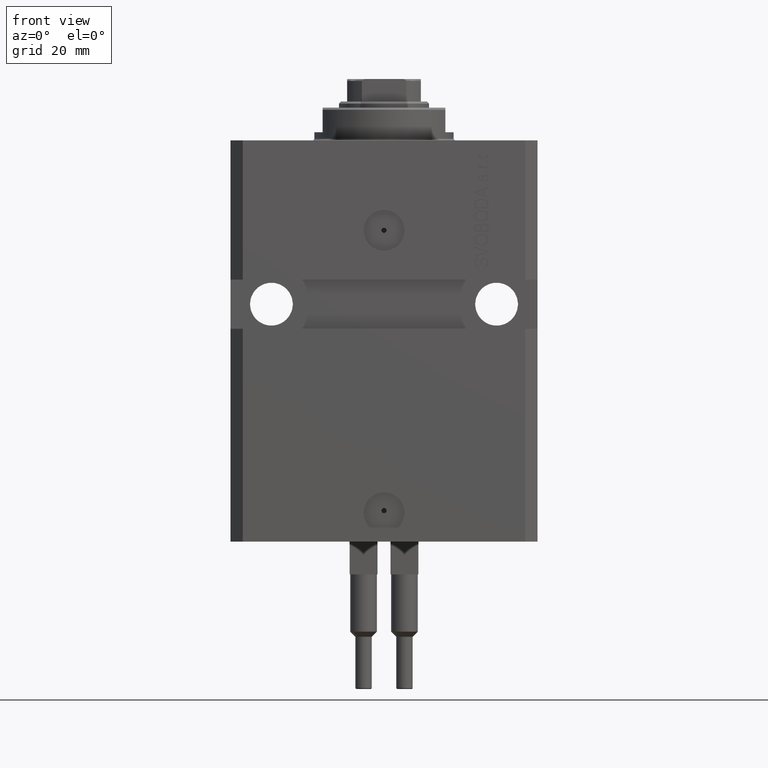
[diagram: clean part render]
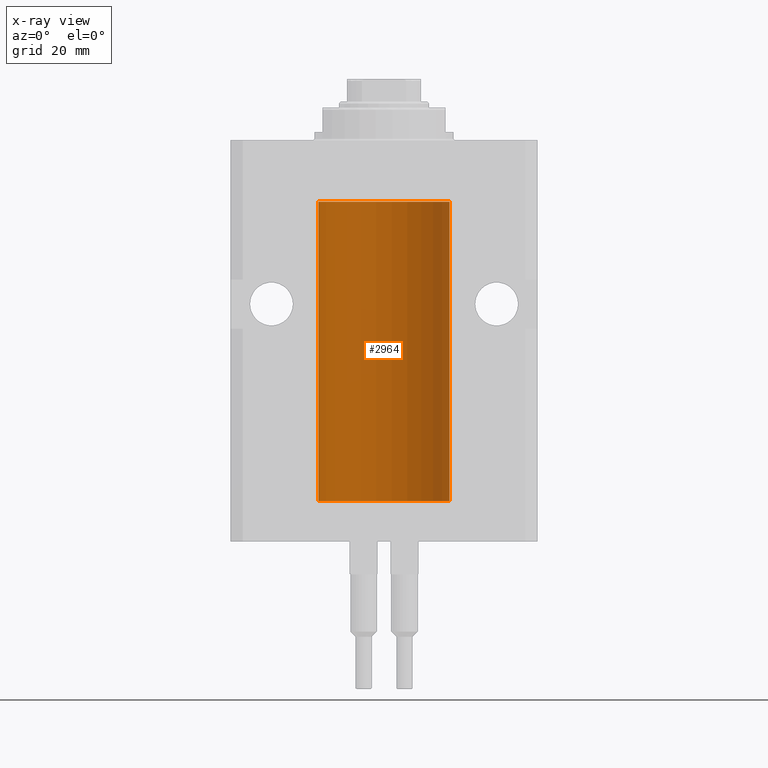
[diagram: x-ray — body ghosted, one internal face saturated and labeled with its STEP entity id]
A machine part, front view, then the same camera in x-ray: the body is ghosted and one INTERNAL B-rep face — a face not visible from any outside direction — is saturated and labeled: STEP entity #2964.
In plain terms, the highlighted cylindrical surface (partial cylindrical patch) has radius 16 mm, axis along (0, 0, 1).
Its self-contained STEP definition (entity closure, byte-faithful):
#472 = EDGE_CURVE ( 'NONE', #3338, #17219, #33292, .T. ) ;
#966 = LINE ( 'NONE', #27502, #33001 ) ;
#1453 = ORIENTED_EDGE ( 'NONE', *, *, #44540, .T. ) ;
#1467 = DIRECTION ( 'NONE',  ( 1.000000000000000000, 0.000000000000000000, 0.000000000000000000 ) ) ;
#1494 = B_SPLINE_CURVE_WITH_KNOTS ( 'NONE', 3,
 ( #43923, #14682, #6418, #47815, #21271, #25416, #36614, #47096 ),
 .UNSPECIFIED., .F., .F.,
 ( 4, 2, 2, 4 ),
 ( 3.199434161265750614E-18, 0.0002443331572174949973, 0.0004886663144349868504, 0.0009773326288699782545 ),
 .UNSPECIFIED. ) ;
#1696 = CARTESIAN_POINT ( 'NONE',  ( 16.00000000000013145, 3.665532680419208314E-13, -21.37499999999658229 ) ) ;
#1790 = ORIENTED_EDGE ( 'NONE', *, *, #33517, .T. ) ;
#2964 = ADVANCED_FACE ( 'NONE', ( #42384 ), #4633, .F. ) ;
#3338 = VERTEX_POINT ( 'NONE', #43289 ) ;
#3417 = CARTESIAN_POINT ( 'NONE',  ( -15.99548640841683067, 0.3843705577988799638, -85.50046628527009318 ) ) ;
#3923 = CARTESIAN_POINT ( 'NONE',  ( 16.00000000000000000, 0.000000000000000000, -88.09999999999999432 ) ) ;
#4013 = DIRECTION ( 'NONE',  ( -0.000000000000000000, -0.000000000000000000, 1.000000000000000000 ) ) ;
#4147 = CARTESIAN_POINT ( 'NONE',  ( -16.00000000000000000, 1.643679961284177128E-16, -21.37499999999999645 ) ) ;
#4364 = CARTESIAN_POINT ( 'NONE',  ( -15.98778717651346071, 0.6250289588122140971, -22.08131585687052478 ) ) ;
#4633 = CYLINDRICAL_SURFACE ( 'NONE', #20496, 16.00000000000000000 ) ;
#4696 = VECTOR ( 'NONE', #20145, 1000.000000000000000 ) ;
#5236 = ORIENTED_EDGE ( 'NONE', *, *, #472, .T. ) ;
#5493 = ORIENTED_EDGE ( 'NONE', *, *, #35277, .F. ) ;
#6418 = CARTESIAN_POINT ( 'NONE',  ( 15.99934183755191341, 0.1636877470526797440, -22.60872690654067796 ) ) ;
#7059 = LINE ( 'NONE', #7538, #47595 ) ;
#7425 = CARTESIAN_POINT ( 'NONE',  ( 15.98778830858103817, 0.6249999999997223332, -85.91847885046213662 ) ) ;
#7524 = CARTESIAN_POINT ( 'NONE',  ( 15.98778830858070954, 0.6250000000079481977, -21.99999999999914735 ) ) ;
#7538 = CARTESIAN_POINT ( 'NONE',  ( -16.00000000000000000, 1.959434878635765131E-15, -88.09999999999999432 ) ) ;
#7655 = CARTESIAN_POINT ( 'NONE',  ( 15.99228275317786441, 0.5002975944204781644, -85.61642014570176684 ) ) ;
#7759 = CARTESIAN_POINT ( 'NONE',  ( 15.99999999999998934, 0.1631343969470015198, -21.37500000000020961 ) ) ;
#7845 = CARTESIAN_POINT ( 'NONE',  ( 16.00000000000000000, 0.000000000000000000, -88.09999999999999432 ) ) ;
#8131 = CARTESIAN_POINT ( 'NONE',  ( 15.99070695999103542, 0.5461439696927204990, -85.68526802364046091 ) ) ;
#8370 = CARTESIAN_POINT ( 'NONE',  ( 15.99711856062700477, 0.3252985083514284281, -85.44140297987709687 ) ) ;
#9226 = CARTESIAN_POINT ( 'NONE',  ( 15.99070366873610638, 0.5574063959867601170, -86.32639436837554570 ) ) ;
#9316 = DIRECTION ( 'NONE',  ( -0.000000000000000000, -0.000000000000000000, 1.000000000000000000 ) ) ;
#9400 = LINE ( 'NONE', #14505, #40488 ) ;
#10215 = B_SPLINE_CURVE_WITH_KNOTS ( 'NONE', 3,
 ( #36315, #36071, #10248, #25356, #3417, #17319, #29240, #43140, #40449, #21687, #13417, #32167, #33141, #47033 ),
 .UNSPECIFIED., .F., .F.,
 ( 4, 2, 2, 2, 2, 2, 4 ),
 ( 1.010068167099639209E-18, 0.0002442776652680926685, 0.0004885553305361842527, 0.0009771106610723674212, 0.001221388326340459114, 0.001465665991608550590, 0.001954221322144762598 ),
 .UNSPECIFIED. ) ;
#10248 = CARTESIAN_POINT ( 'NONE',  ( -15.99934216141748244, 0.1636497843296323140, -85.39126528029308361 ) ) ;
#11182 = CARTESIAN_POINT ( 'NONE',  ( 15.98844460043492077, 0.6087869699336542206, -21.83657454967558209 ) ) ;
#11269 = ORIENTED_EDGE ( 'NONE', *, *, #33779, .T. ) ;
#11439 = CARTESIAN_POINT ( 'NONE',  ( -15.98779057735153941, 0.6249419637998100407, -21.83670145863507273 ) ) ;
#11674 = CARTESIAN_POINT ( 'NONE',  ( -15.98844267028591482, 0.6088369347963316081, -22.16324735024328518 ) ) ;
#11743 = DIRECTION ( 'NONE',  ( -0.000000000000000000, -0.000000000000000000, 1.000000000000000000 ) ) ;
#11817 = VERTEX_POINT ( 'NONE', #12011 ) ;
#12011 = CARTESIAN_POINT ( 'NONE',  ( -16.00000000000000000, -1.157134109608299617E-14, -85.37500000000000000 ) ) ;
#12586 = DIRECTION ( 'NONE',  ( 0.000000000000000000, 0.000000000000000000, 1.000000000000000000 ) ) ;
#13307 = CARTESIAN_POINT ( 'NONE',  ( 15.98778830858070954, 0.6250000000079481977, -21.99999999999914735 ) ) ;
#13417 = CARTESIAN_POINT ( 'NONE',  ( -15.99228023727723702, 0.5003781296993373706, -86.38347829554237478 ) ) ;
#13760 = B_SPLINE_CURVE_WITH_KNOTS ( 'NONE', 3,
 ( #7524, #41855, #11182, #41610, #48215, #38200, #7759, #37248 ),
 .UNSPECIFIED., .F., .F.,
 ( 4, 2, 2, 4 ),
 ( 0.0009773326288699782545, 0.001221554802188574377, 0.001465776975507170283, 0.001954221322144355372 ),
 .UNSPECIFIED. ) ;
#13872 = VECTOR ( 'NONE', #9316, 1000.000000000000000 ) ;
#14505 = CARTESIAN_POINT ( 'NONE',  ( -16.00000000000000000, 1.959434878635765131E-15, -88.09999999999999432 ) ) ;
#14567 = VERTEX_POINT ( 'NONE', #36113 ) ;
#14682 = CARTESIAN_POINT ( 'NONE',  ( 15.99999999999999645, 0.08261762387942306329, -22.62499999999997868 ) ) ;
#14729 = CARTESIAN_POINT ( 'NONE',  ( 0.000000000000000000, 0.000000000000000000, -88.09999999999999432 ) ) ;
#15027 = EDGE_LOOP ( 'NONE', ( #38630, #46404, #32462, #5236, #42331, #1453, #1790, #22937, #47645, #24476, #42882, #20962, #5493, #11269 ) ) ;
#15091 = DIRECTION ( 'NONE',  ( -0.000000000000000000, -0.000000000000000000, 1.000000000000000000 ) ) ;
#15094 = CARTESIAN_POINT ( 'NONE',  ( -15.99707730059171240, 0.3150375992092407373, -21.45402333202571654 ) ) ;
#15163 = LINE ( 'NONE', #7845, #34100 ) ;
#15213 = DIRECTION ( 'NONE',  ( 0.000000000000000000, 0.000000000000000000, 1.000000000000000000 ) ) ;
#15446 = CARTESIAN_POINT ( 'NONE',  ( 16.00000000000013145, 3.665532692826917502E-13, -85.37499999999657518 ) ) ;
#15810 = CARTESIAN_POINT ( 'NONE',  ( -16.00000000000000000, 1.643679961284177128E-16, -21.37499999999999645 ) ) ;
#16310 = CARTESIAN_POINT ( 'NONE',  ( 15.98778830858101152, 0.6250000000002222666, -86.16311639173022741 ) ) ;
#16548 = CARTESIAN_POINT ( 'NONE',  ( 15.99707608081895138, 0.3151028052310259620, -86.54594170697733091 ) ) ;
#16602 = VERTEX_POINT ( 'NONE', #35307 ) ;
#17178 = EDGE_CURVE ( 'NONE', #41151, #38051, #13760, .T. ) ;
#17219 = VERTEX_POINT ( 'NONE', #37718 ) ;
#17253 = CARTESIAN_POINT ( 'NONE',  ( -16.00000000000000000, 1.959434878635765131E-15, -15.00000000000000000 ) ) ;
#17254 = CARTESIAN_POINT ( 'NONE',  ( -15.99228023727724413, 0.5003781296993413674, -22.38347829554236057 ) ) ;
#17319 = CARTESIAN_POINT ( 'NONE',  ( -15.99070653155268396, 0.5573233280232945397, -85.67348148680507336 ) ) ;
#17340 = B_SPLINE_CURVE_WITH_KNOTS ( 'NONE', 3,
 ( #15810, #23361, #38218, #15094, #38453, #45052, #11439, #4364, #11674, #23844, #17254, #31381, #32103, #24805 ),
 .UNSPECIFIED., .F., .F.,
 ( 4, 2, 2, 2, 2, 2, 4 ),
 ( 1.597328219370744179E-19, 0.0002442776652680942405, 0.0004885553305361882643, 0.0009771106610723839011, 0.001221388326340481665, 0.001465665991608579430, 0.001954221322144767369 ),
 .UNSPECIFIED. ) ;
#17691 = CARTESIAN_POINT ( 'NONE',  ( 15.99548458234361092, 0.3844468804816182916, -86.49947786696354513 ) ) ;
#18010 = EDGE_CURVE ( 'NONE', #27974, #35594, #23700, .T. ) ;
#19510 = DIRECTION ( 'NONE',  ( -0.000000000000000000, -0.000000000000000000, 1.000000000000000000 ) ) ;
#19727 = CARTESIAN_POINT ( 'NONE',  ( 16.00000000000000000, -1.835653844722709729E-15, -86.62500000000001421 ) ) ;
#19937 = EDGE_CURVE ( 'NONE', #17219, #35913, #36798, .T. ) ;
#20145 = DIRECTION ( 'NONE',  ( -0.000000000000000000, -0.000000000000000000, 1.000000000000000000 ) ) ;
#20496 = AXIS2_PLACEMENT_3D ( 'NONE', #24118, #19510, #1467 ) ;
#20962 = ORIENTED_EDGE ( 'NONE', *, *, #40064, .T. ) ;
#21271 = CARTESIAN_POINT ( 'NONE',  ( 15.99548458234361803, 0.3844468804815586727, -22.49947786696350960 ) ) ;
#21388 = VERTEX_POINT ( 'NONE', #31314 ) ;
#21687 = CARTESIAN_POINT ( 'NONE',  ( -15.99070426498502506, 0.5462220647145623609, -86.31460064614142880 ) ) ;
#22832 = VERTEX_POINT ( 'NONE', #32417 ) ;
#22937 = ORIENTED_EDGE ( 'NONE', *, *, #17178, .T. ) ;
#23211 = CIRCLE ( 'NONE', #27879, 16.00000000000000000 ) ;
#23224 = CARTESIAN_POINT ( 'NONE',  ( -16.00000000000000000, 1.959434878635765131E-15, -88.09999999999999432 ) ) ;
#23361 = CARTESIAN_POINT ( 'NONE',  ( -16.00000000000000711, 0.08259886010189904093, -21.37500000000000000 ) ) ;
#23700 = LINE ( 'NONE', #23224, #13872 ) ;
#23722 = CIRCLE ( 'NONE', #27616, 16.00000000000000000 ) ;
#23844 = CARTESIAN_POINT ( 'NONE',  ( -15.99070426498503217, 0.5462220647145618058, -22.31460064614143590 ) ) ;
#24118 = CARTESIAN_POINT ( 'NONE',  ( 0.000000000000000000, 0.000000000000000000, -88.09999999999999432 ) ) ;
#24476 = ORIENTED_EDGE ( 'NONE', *, *, #27588, .T. ) ;
#24805 = CARTESIAN_POINT ( 'NONE',  ( -16.00000000000013145, 3.685127038166941002E-13, -22.62500000000341771 ) ) ;
#25356 = CARTESIAN_POINT ( 'NONE',  ( -15.99707730059171595, 0.3150375992092311894, -85.45402333202568457 ) ) ;
#25416 = CARTESIAN_POINT ( 'NONE',  ( 15.99070366873610993, 0.5574063959866684126, -22.32639436837550306 ) ) ;
#26418 = CARTESIAN_POINT ( 'NONE',  ( 15.98844460043491367, 0.6087869699337551399, -85.83657454967556077 ) ) ;
#27021 = EDGE_CURVE ( 'NONE', #30361, #3338, #15163, .T. ) ;
#27318 = CARTESIAN_POINT ( 'NONE',  ( 16.00000000000013145, 3.665532692826917502E-13, -85.37499999999657518 ) ) ;
#27502 = CARTESIAN_POINT ( 'NONE',  ( 16.00000000000000000, 0.000000000000000000, -88.09999999999999432 ) ) ;
#27588 = EDGE_CURVE ( 'NONE', #14567, #35594, #23211, .T. ) ;
#27616 = AXIS2_PLACEMENT_3D ( 'NONE', #14729, #15213, #36902 ) ;
#27879 = AXIS2_PLACEMENT_3D ( 'NONE', #39138, #12586, #46684 ) ;
#27974 = VERTEX_POINT ( 'NONE', #4147 ) ;
#29240 = CARTESIAN_POINT ( 'NONE',  ( -15.98779057735153941, 0.6249419637998033794, -85.83670145863506207 ) ) ;
#30361 = VERTEX_POINT ( 'NONE', #3923 ) ;
#30544 = CARTESIAN_POINT ( 'NONE',  ( 15.98778830858070954, 0.6250000000080517815, -85.99999999999916156 ) ) ;
#31314 = CARTESIAN_POINT ( 'NONE',  ( 16.00000000000000000, 2.111103446002389479E-15, -22.62500000000000000 ) ) ;
#31381 = CARTESIAN_POINT ( 'NONE',  ( -15.99711699979842017, 0.3253759916140657737, -22.55856151623175521 ) ) ;
#32103 = CARTESIAN_POINT ( 'NONE',  ( -16.00000000000000000, 0.1631714642025800244, -22.62499999999985789 ) ) ;
#32167 = CARTESIAN_POINT ( 'NONE',  ( -15.99711699979841661, 0.3253759916140629427, -86.55856151623177652 ) ) ;
#32417 = CARTESIAN_POINT ( 'NONE',  ( -16.00000000000000000, 1.959434878635765131E-15, -88.09999999999999432 ) ) ;
#32462 = ORIENTED_EDGE ( 'NONE', *, *, #27021, .T. ) ;
#32537 = CARTESIAN_POINT ( 'NONE',  ( 15.99934183755190986, 0.1636877470527013101, -86.60872690654072414 ) ) ;
#33001 = VECTOR ( 'NONE', #41400, 1000.000000000000000 ) ;
#33141 = CARTESIAN_POINT ( 'NONE',  ( -15.99999999999999645, 0.1631714642025801354, -86.62499999999988631 ) ) ;
#33292 = B_SPLINE_CURVE_WITH_KNOTS ( 'NONE', 3,
 ( #19727, #47404, #32537, #16548, #17691, #9226, #16310, #35301 ),
 .UNSPECIFIED., .F., .F.,
 ( 4, 2, 2, 4 ),
 ( 1.783888443149829469E-18, 0.0002443331572175111519, 0.0004886663144350204607, 0.0009773326288700682433 ),
 .UNSPECIFIED. ) ;
#33517 = EDGE_CURVE ( 'NONE', #21388, #41151, #1494, .T. ) ;
#33779 = EDGE_CURVE ( 'NONE', #11817, #16602, #10215, .T. ) ;
#34100 = VECTOR ( 'NONE', #11743, 1000.000000000000000 ) ;
#34275 = CARTESIAN_POINT ( 'NONE',  ( 16.00000000000000000, 0.000000000000000000, -88.09999999999999432 ) ) ;
#35277 = EDGE_CURVE ( 'NONE', #11817, #47843, #7059, .T. ) ;
#35301 = CARTESIAN_POINT ( 'NONE',  ( 15.98778830858070954, 0.6250000000080517815, -85.99999999999916156 ) ) ;
#35307 = CARTESIAN_POINT ( 'NONE',  ( -16.00000000000013145, 3.685127046438747128E-13, -86.62500000000343903 ) ) ;
#35594 = VERTEX_POINT ( 'NONE', #17253 ) ;
#35795 = EDGE_CURVE ( 'NONE', #22832, #16602, #9400, .T. ) ;
#35913 = VERTEX_POINT ( 'NONE', #27318 ) ;
#36071 = CARTESIAN_POINT ( 'NONE',  ( -16.00000000000000000, 0.08259886010188800809, -85.37499999999998579 ) ) ;
#36113 = CARTESIAN_POINT ( 'NONE',  ( 16.00000000000000000, 0.000000000000000000, -15.00000000000000000 ) ) ;
#36315 = CARTESIAN_POINT ( 'NONE',  ( -16.00000000000000000, -1.157134109608299617E-14, -85.37500000000000000 ) ) ;
#36614 = CARTESIAN_POINT ( 'NONE',  ( 15.98778830858101685, 0.6250000000001205702, -22.16311639173018833 ) ) ;
#36647 = EDGE_CURVE ( 'NONE', #38051, #14567, #41580, .T. ) ;
#36798 = B_SPLINE_CURVE_WITH_KNOTS ( 'NONE', 3,
 ( #30544, #7425, #26418, #8131, #7655, #8370, #45409, #15446 ),
 .UNSPECIFIED., .F., .F.,
 ( 4, 2, 2, 4 ),
 ( 0.0009773326288700682433, 0.001221554802188685399, 0.001465776975507302772, 0.001954221322144537518 ),
 .UNSPECIFIED. ) ;
#36902 = DIRECTION ( 'NONE',  ( 1.000000000000000000, 0.000000000000000000, 0.000000000000000000 ) ) ;
#37248 = CARTESIAN_POINT ( 'NONE',  ( 16.00000000000013145, 3.665532680419208314E-13, -21.37499999999658229 ) ) ;
#37718 = CARTESIAN_POINT ( 'NONE',  ( 15.98778830858070954, 0.6250000000080517815, -85.99999999999916156 ) ) ;
#38051 = VERTEX_POINT ( 'NONE', #1696 ) ;
#38200 = CARTESIAN_POINT ( 'NONE',  ( 15.99711856062700122, 0.3252985083513914577, -21.44140297987715016 ) ) ;
#38218 = CARTESIAN_POINT ( 'NONE',  ( -15.99934216141748244, 0.1636497843296417787, -21.39126528029306229 ) ) ;
#38453 = CARTESIAN_POINT ( 'NONE',  ( -15.99548640841683067, 0.3843705577988847377, -21.50046628527008608 ) ) ;
#38630 = ORIENTED_EDGE ( 'NONE', *, *, #35795, .F. ) ;
#39138 = CARTESIAN_POINT ( 'NONE',  ( 0.000000000000000000, 0.000000000000000000, -15.00000000000000000 ) ) ;
#39494 = CARTESIAN_POINT ( 'NONE',  ( -16.00000000000013145, 3.685127038166941002E-13, -22.62500000000341771 ) ) ;
#40064 = EDGE_CURVE ( 'NONE', #27974, #47843, #17340, .T. ) ;
#40449 = CARTESIAN_POINT ( 'NONE',  ( -15.98844267028591837, 0.6088369347963296097, -86.16324735024329584 ) ) ;
#40488 = VECTOR ( 'NONE', #4013, 1000.000000000000000 ) ;
#41151 = VERTEX_POINT ( 'NONE', #13307 ) ;
#41400 = DIRECTION ( 'NONE',  ( -0.000000000000000000, -0.000000000000000000, 1.000000000000000000 ) ) ;
#41580 = LINE ( 'NONE', #34275, #4696 ) ;
#41610 = CARTESIAN_POINT ( 'NONE',  ( 15.99070695999104252, 0.5461439696926365661, -21.68526802364053196 ) ) ;
#41855 = CARTESIAN_POINT ( 'NONE',  ( 15.98778830858103817, 0.6249999999996181943, -21.91847885046212951 ) ) ;
#42331 = ORIENTED_EDGE ( 'NONE', *, *, #19937, .T. ) ;
#42384 = FACE_OUTER_BOUND ( 'NONE', #15027, .T. ) ;
#42882 = ORIENTED_EDGE ( 'NONE', *, *, #18010, .F. ) ;
#43140 = CARTESIAN_POINT ( 'NONE',  ( -15.98778717651346426, 0.6250289588122115436, -86.08131585687053189 ) ) ;
#43289 = CARTESIAN_POINT ( 'NONE',  ( 16.00000000000000000, -1.835653844722709729E-15, -86.62500000000001421 ) ) ;
#43923 = CARTESIAN_POINT ( 'NONE',  ( 16.00000000000000000, 2.111103446002389479E-15, -22.62500000000000000 ) ) ;
#44540 = EDGE_CURVE ( 'NONE', #35913, #21388, #966, .T. ) ;
#45052 = CARTESIAN_POINT ( 'NONE',  ( -15.99070653155267685, 0.5573233280232986475, -21.67348148680506625 ) ) ;
#45409 = CARTESIAN_POINT ( 'NONE',  ( 15.99999999999999645, 0.1631343969470158417, -85.37500000000019895 ) ) ;
#46354 = EDGE_CURVE ( 'NONE', #30361, #22832, #23722, .T. ) ;
#46404 = ORIENTED_EDGE ( 'NONE', *, *, #46354, .F. ) ;
#46684 = DIRECTION ( 'NONE',  ( 1.000000000000000000, 0.000000000000000000, 0.000000000000000000 ) ) ;
#47033 = CARTESIAN_POINT ( 'NONE',  ( -16.00000000000013145, 3.685127046438747128E-13, -86.62500000000343903 ) ) ;
#47096 = CARTESIAN_POINT ( 'NONE',  ( 15.98778830858070954, 0.6250000000079481977, -21.99999999999914735 ) ) ;
#47404 = CARTESIAN_POINT ( 'NONE',  ( 16.00000000000000711, 0.08261762387943046015, -86.62500000000001421 ) ) ;
#47595 = VECTOR ( 'NONE', #15091, 1000.000000000000000 ) ;
#47645 = ORIENTED_EDGE ( 'NONE', *, *, #36647, .T. ) ;
#47815 = CARTESIAN_POINT ( 'NONE',  ( 15.99707608081895138, 0.3151028052309821081, -22.54594170697727051 ) ) ;
#47843 = VERTEX_POINT ( 'NONE', #39494 ) ;
#48215 = CARTESIAN_POINT ( 'NONE',  ( 15.99228275317787151, 0.5002975944204001157, -21.61642014570180947 ) ) ;